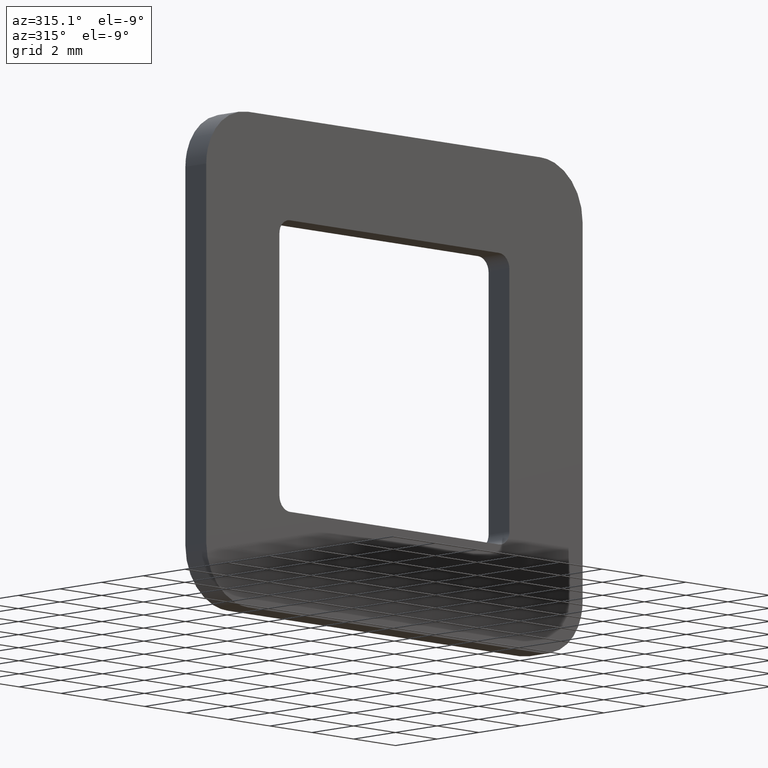
[diagram: clean part render]
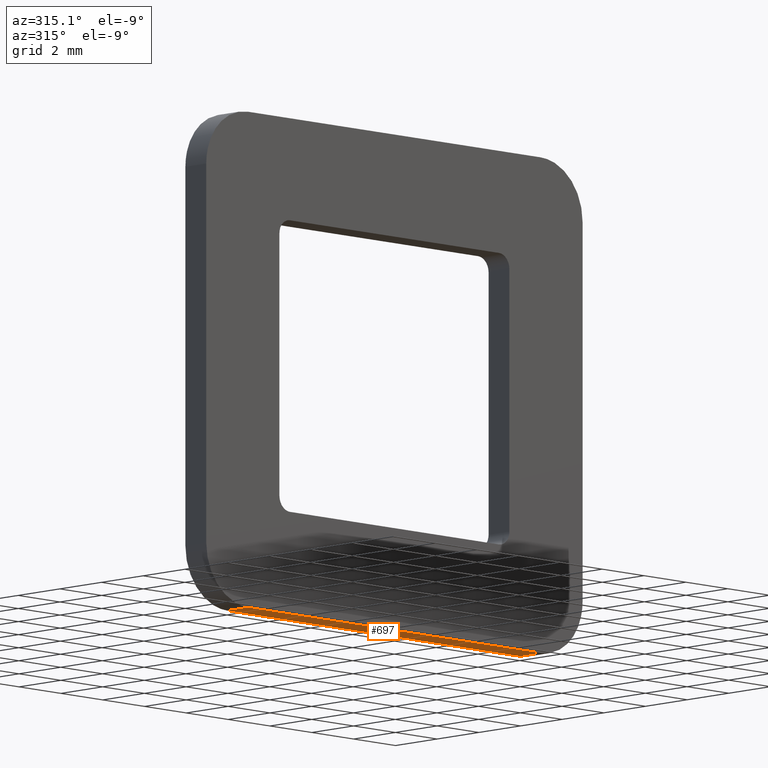
[diagram: same view with one face highlighted and labeled with its STEP entity id]
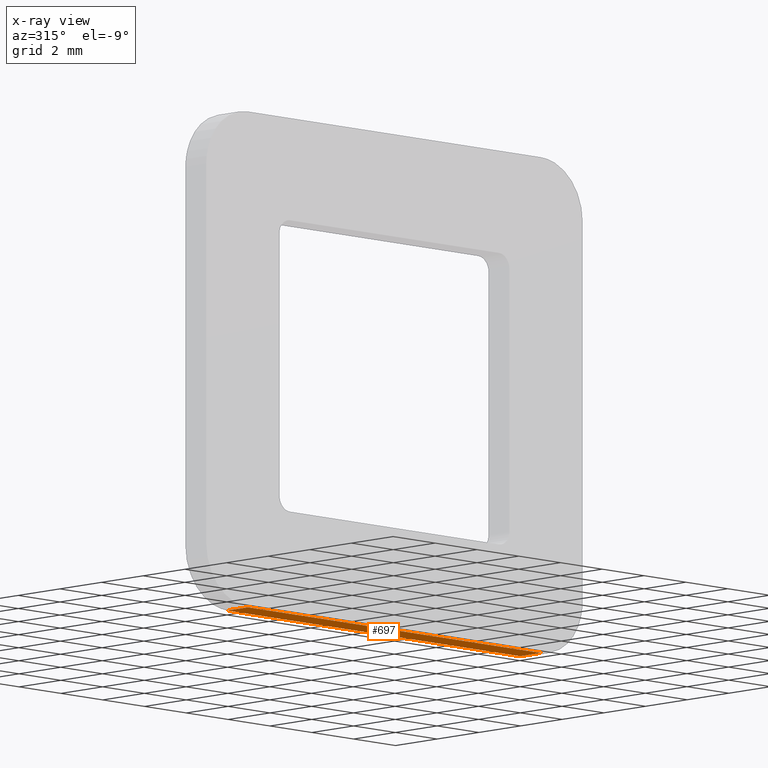
[diagram: x-ray of the same camera — body ghosted, the highlighted face saturated]
A machine part, auxiliary view. The second image highlights one B-rep face of the part: STEP entity #697.
The next image is the same camera in x-ray: the body ghosted, the highlighted face saturated — about 0% of this face is hidden behind the body in this view.
In plain terms, the highlighted face is a freeform B-spline surface patch.
Its self-contained STEP definition (entity closure, byte-faithful):
#405=CARTESIAN_POINT('',(-6.999999965093420,0.0,-8.500000000000000));
#406=VERTEX_POINT('',#405);
#422=CARTESIAN_POINT('',(7.0,0.0,-8.500000000000000));
#423=VERTEX_POINT('',#422);
#424=CARTESIAN_POINT('',(-6.999999965093420,0.0,-8.500000000000000));
#425=CARTESIAN_POINT('',(7.0,0.0,-8.500000000000000));
#426=QUASI_UNIFORM_CURVE('',1,(#424,#425),.UNSPECIFIED.,.F.,.U.);
#427=EDGE_CURVE('',#406,#423,#426,.T.);
#539=CARTESIAN_POINT('',(7.0,1.0,-8.500000000000000));
#540=VERTEX_POINT('',#539);
#554=CARTESIAN_POINT('',(-6.999999965093420,1.0,-8.500000000000000));
#555=VERTEX_POINT('',#554);
#556=CARTESIAN_POINT('',(-6.999999965093420,1.0,-8.500000000000000));
#557=CARTESIAN_POINT('',(7.0,1.0,-8.500000000000000));
#558=QUASI_UNIFORM_CURVE('',1,(#556,#557),.UNSPECIFIED.,.F.,.U.);
#559=EDGE_CURVE('',#555,#540,#558,.T.);
#672=CARTESIAN_POINT('',(7.0,1.0,-8.500000000000000));
#673=CARTESIAN_POINT('',(7.0,0.0,-8.500000000000000));
#674=QUASI_UNIFORM_CURVE('',1,(#672,#673),.UNSPECIFIED.,.F.,.U.);
#675=EDGE_CURVE('',#540,#423,#674,.T.);
#682=CARTESIAN_POINT('',(7.699299971121699,-0.049949998061806,-8.500000000000000));
#683=CARTESIAN_POINT('',(-7.699300311724382,-0.049949998061806,-8.500000000000000));
#684=CARTESIAN_POINT('',(7.699299971121699,1.049950024883896,-8.500000000000000));
#685=CARTESIAN_POINT('',(-7.699300311724382,1.049950024883896,-8.500000000000000));
#686=B_SPLINE_SURFACE_WITH_KNOTS('',1,1,((#682,#684),(#683,#685)),.UNSPECIFIED.,.F.,.F.,.U.,(2,2),(2,2),(0.0,15.398600282846081),(0.041708334948495,0.958291687403247),.UNSPECIFIED.);
#687=ORIENTED_EDGE('',*,*,#427,.F.);
#688=CARTESIAN_POINT('',(-6.999999965093420,1.0,-8.500000000000000));
#689=CARTESIAN_POINT('',(-6.999999965093420,0.0,-8.500000000000000));
#690=QUASI_UNIFORM_CURVE('',1,(#688,#689),.UNSPECIFIED.,.F.,.U.);
#691=EDGE_CURVE('',#555,#406,#690,.T.);
#692=ORIENTED_EDGE('',*,*,#691,.F.);
#693=ORIENTED_EDGE('',*,*,#559,.T.);
#694=ORIENTED_EDGE('',*,*,#675,.T.);
#695=EDGE_LOOP('',(#687,#692,#693,#694));
#696=FACE_OUTER_BOUND('',#695,.T.);
#697=ADVANCED_FACE('',(#696),#686,.T.);